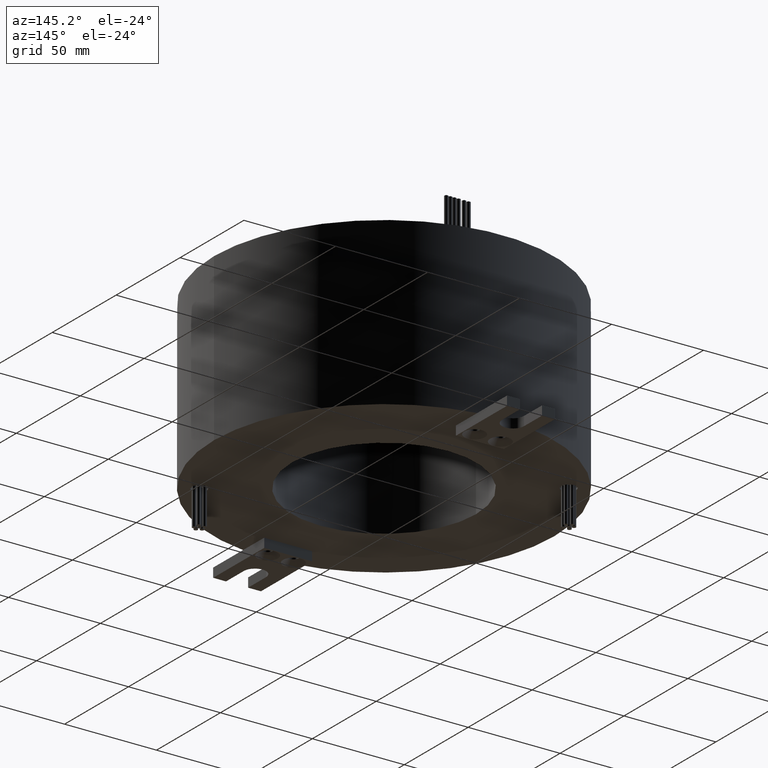
[diagram: clean part render]
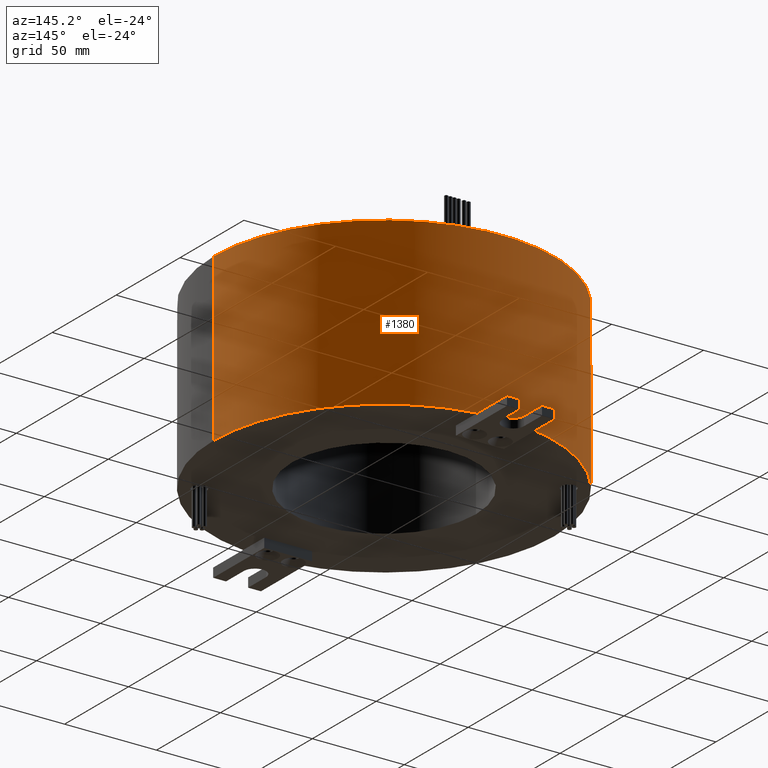
[diagram: same view with one face highlighted and labeled with its STEP entity id]
A machine part, auxiliary view. The second image highlights one B-rep face of the part: STEP entity #1380.
In plain terms, the highlighted cylindrical surface (partial cylindrical patch) has radius 92.5 mm, axis along (-0, -0, 1).
Its self-contained STEP definition (entity closure, byte-faithful):
#279 = VECTOR ( 'NONE', #4780, 1000.000000000000000 ) ;
#361 = VERTEX_POINT ( 'NONE', #2407 ) ;
#374 = AXIS2_PLACEMENT_3D ( 'NONE', #1604, #4357, #1980 ) ;
#406 = CARTESIAN_POINT ( 'NONE',  ( -92.50000000000000000, 1.132798289211301700E-014, -12.00000000000000400 ) ) ;
#457 = CIRCLE ( 'NONE', #4776, 92.50000000000000000 ) ;
#602 = CARTESIAN_POINT ( 'NONE',  ( 0.0000000000000000000, 0.0000000000000000000, -12.00000000000000400 ) ) ;
#852 = EDGE_CURVE ( 'NONE', #1448, #3614, #2495, .T. ) ;
#951 = DIRECTION ( 'NONE',  ( 1.000000000000000000, 0.0000000000000000000, 0.0000000000000000000 ) ) ;
#991 = DIRECTION ( 'NONE',  ( 1.000000000000000000, 0.0000000000000000000, 0.0000000000000000000 ) ) ;
#1087 = LINE ( 'NONE', #2014, #279 ) ;
#1133 = ORIENTED_EDGE ( 'NONE', *, *, #852, .T. ) ;
#1218 = DIRECTION ( 'NONE',  ( -0.0000000000000000000, -0.0000000000000000000, 1.000000000000000000 ) ) ;
#1324 = VERTEX_POINT ( 'NONE', #4412 ) ;
#1340 = CIRCLE ( 'NONE', #3950, 92.50000000000000000 ) ;
#1380 = ADVANCED_FACE ( 'NONE', ( #4597 ), #2490, .T. ) ;
#1395 = DIRECTION ( 'NONE',  ( -0.0000000000000000000, -0.0000000000000000000, 1.000000000000000000 ) ) ;
#1417 = CARTESIAN_POINT ( 'NONE',  ( 13.00000000000000000, 91.58193053217431200, -102.0000000000000100 ) ) ;
#1426 = EDGE_CURVE ( 'NONE', #361, #1448, #1340, .T. ) ;
#1448 = VERTEX_POINT ( 'NONE', #1417 ) ;
#1511 = LINE ( 'NONE', #2335, #2409 ) ;
#1542 = CARTESIAN_POINT ( 'NONE',  ( -92.50000000000000000, 1.132798289211301700E-014, -102.0000000000000100 ) ) ;
#1604 = CARTESIAN_POINT ( 'NONE',  ( 0.0000000000000000000, 0.0000000000000000000, -102.0000000000000100 ) ) ;
#1980 = DIRECTION ( 'NONE',  ( 1.000000000000000000, 0.0000000000000000000, 0.0000000000000000000 ) ) ;
#2014 = CARTESIAN_POINT ( 'NONE',  ( -92.50000000000000000, 1.132798289211301700E-014, 43.85958022877165500 ) ) ;
#2223 = EDGE_CURVE ( 'NONE', #2388, #4625, #1087, .T. ) ;
#2335 = CARTESIAN_POINT ( 'NONE',  ( 92.50000000000000000, 0.0000000000000000000, 43.85958022877165500 ) ) ;
#2388 = VERTEX_POINT ( 'NONE', #1542 ) ;
#2407 = CARTESIAN_POINT ( 'NONE',  ( 92.50000000000000000, 0.0000000000000000000, -102.0000000000000100 ) ) ;
#2409 = VECTOR ( 'NONE', #5105, 1000.000000000000000 ) ;
#2490 = CYLINDRICAL_SURFACE ( 'NONE', #3889, 92.50000000000000000 ) ;
#2495 = CIRCLE ( 'NONE', #374, 92.50000000000000000 ) ;
#2995 = ORIENTED_EDGE ( 'NONE', *, *, #2223, .T. ) ;
#3194 = CIRCLE ( 'NONE', #3502, 92.50000000000000000 ) ;
#3250 = ORIENTED_EDGE ( 'NONE', *, *, #1426, .T. ) ;
#3291 = ORIENTED_EDGE ( 'NONE', *, *, #4637, .T. ) ;
#3293 = DIRECTION ( 'NONE',  ( -0.0000000000000000000, -0.0000000000000000000, 1.000000000000000000 ) ) ;
#3326 = DIRECTION ( 'NONE',  ( -0.0000000000000000000, -0.0000000000000000000, 1.000000000000000000 ) ) ;
#3428 = CARTESIAN_POINT ( 'NONE',  ( -13.00000000000000000, 91.58193053217429700, -102.0000000000000100 ) ) ;
#3502 = AXIS2_PLACEMENT_3D ( 'NONE', #3551, #1218, #3949 ) ;
#3551 = CARTESIAN_POINT ( 'NONE',  ( 0.0000000000000000000, 0.0000000000000000000, -102.0000000000000100 ) ) ;
#3614 = VERTEX_POINT ( 'NONE', #3428 ) ;
#3732 = CARTESIAN_POINT ( 'NONE',  ( 0.0000000000000000000, 0.0000000000000000000, -102.0000000000000100 ) ) ;
#3749 = EDGE_LOOP ( 'NONE', ( #3291, #2995, #4461, #4575, #3250, #1133 ) ) ;
#3889 = AXIS2_PLACEMENT_3D ( 'NONE', #4879, #3293, #951 ) ;
#3949 = DIRECTION ( 'NONE',  ( 1.000000000000000000, 0.0000000000000000000, 0.0000000000000000000 ) ) ;
#3950 = AXIS2_PLACEMENT_3D ( 'NONE', #3732, #1395, #4127 ) ;
#4112 = EDGE_CURVE ( 'NONE', #1324, #4625, #457, .T. ) ;
#4127 = DIRECTION ( 'NONE',  ( 1.000000000000000000, 0.0000000000000000000, 0.0000000000000000000 ) ) ;
#4357 = DIRECTION ( 'NONE',  ( -0.0000000000000000000, -0.0000000000000000000, 1.000000000000000000 ) ) ;
#4412 = CARTESIAN_POINT ( 'NONE',  ( 92.50000000000000000, 0.0000000000000000000, -12.00000000000000400 ) ) ;
#4461 = ORIENTED_EDGE ( 'NONE', *, *, #4112, .F. ) ;
#4575 = ORIENTED_EDGE ( 'NONE', *, *, #4594, .F. ) ;
#4594 = EDGE_CURVE ( 'NONE', #361, #1324, #1511, .T. ) ;
#4597 = FACE_OUTER_BOUND ( 'NONE', #3749, .T. ) ;
#4625 = VERTEX_POINT ( 'NONE', #406 ) ;
#4637 = EDGE_CURVE ( 'NONE', #3614, #2388, #3194, .T. ) ;
#4776 = AXIS2_PLACEMENT_3D ( 'NONE', #602, #3326, #991 ) ;
#4780 = DIRECTION ( 'NONE',  ( -0.0000000000000000000, -0.0000000000000000000, 1.000000000000000000 ) ) ;
#4879 = CARTESIAN_POINT ( 'NONE',  ( 0.0000000000000000000, 0.0000000000000000000, 43.85958022877165500 ) ) ;
#5105 = DIRECTION ( 'NONE',  ( -0.0000000000000000000, -0.0000000000000000000, 1.000000000000000000 ) ) ;